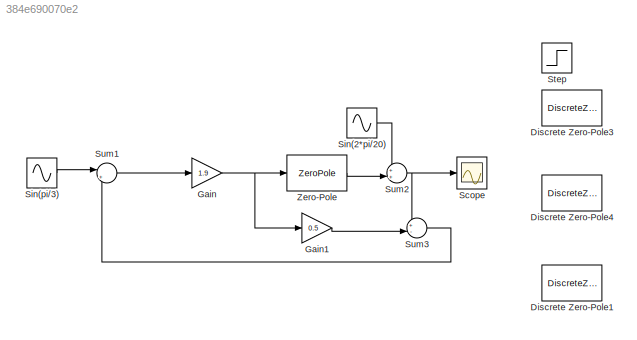
MODEL slx_384e690070e2
KIND model
CONFIG AbsTol = auto
CONFIG FixedStep = auto
CONFIG MaxStep = auto
CONFIG MinStep = auto
CONFIG RelTol = 1e-3
CONFIG SampleTimeConstraint = Unconstrained
CONFIG Solver = VariableStepAuto
CONFIG SolverMode = Auto
CONFIG SolverName = VariableStepAuto
CONFIG StartTime = 0.0
CONFIG StopTime = 20
BLOCK [DiscreteZeroPole] Discrete Zero-Pole1
  Gain = 1
  Poles = [1.4 0.9]
  Zeros = [-0.5]
BLOCK [DiscreteZeroPole] Discrete Zero-Pole3
  Gain = 0.9
  Poles = [1.4 0.9]
  Zeros = [0 -0.5]
BLOCK [DiscreteZeroPole] Discrete Zero-Pole4
  Gain = 1
  Poles = [0 -0.5]
  Zeros = [1.4 0.9]
BLOCK [Gain] Gain
  Gain = 1.9
  OutDataTypeStr = Inherit: Inherit via internal rule
  ParamDataTypeStr = Inherit: Inherit via internal rule
  SaturateOnIntegerOverflow = off
BLOCK [Gain] Gain1
  Gain = 0.5
  OutDataTypeStr = Inherit: Inherit via internal rule
  ParamDataTypeStr = Inherit: Inherit via internal rule
  SaturateOnIntegerOverflow = off
BLOCK [Scope] Scope
  Ports = [1]
  ScopeSpecificationString = Simulink.scopes.TimeScopeBlockCfg('CurrentConfiguration', extmgr.ConfigurationSet(extmgr.Configuration('Core','General UI',true,'FigureColor',[1 1 1]),extmgr.Configuration('Core','Source UI',true),extmgr.Configuration('Sources','WiredSimulink',true,'DataLoggingVariableName','ScopeData1'),extmgr.Configuration('Visuals','Time Domain',true,'SerializedDisplays',{struct('MinYLimReal','-1.798','MaxYLimR...<+1673ch>
BLOCK [Sin] Sin(2*pi//20)
  Amplitude = 0.2
  Frequency = 2*pi/20
  Ports = [0, 1]
  SampleTime = 0
BLOCK [Sin] Sin(pi//3)
  Frequency = pi/3
  Ports = [0, 1]
  SampleTime = 0
BLOCK [Step] Step
  SampleTime = 0
  Time = 0
BLOCK [Sum] Sum1
  IconShape = round
  InputSameDT = off
  Inputs = |+-
  OutDataTypeStr = Inherit: Inherit via internal rule
  Ports = [2, 1]
  SaturateOnIntegerOverflow = off
BLOCK [Sum] Sum2
  IconShape = round
  InputSameDT = off
  Inputs = ++|
  OutDataTypeStr = Inherit: Inherit via internal rule
  Ports = [2, 1]
  SaturateOnIntegerOverflow = off
BLOCK [Sum] Sum3
  IconShape = round
  InputSameDT = off
  Inputs = +-|
  OutDataTypeStr = Inherit: Inherit via internal rule
  Ports = [2, 1]
  SaturateOnIntegerOverflow = off
BLOCK [ZeroPole] Zero-Pole
  Poles = [1.4 0.9]
  Zeros = [-0.5]
LINE Gain1:1 -> Sum3:2
NET Gain:1 -> Gain1:1, Zero-Pole:1
LINE Sin(2*pi//20):1 -> Sum2:1
LINE Sin(pi//3):1 -> Sum1:1
LINE Sum1:1 -> Gain:1
NET Sum2:1 -> Scope:1, Sum3:1
LINE Sum3:1 -> Sum1:2
LINE Zero-Pole:1 -> Sum2:2
note: NET lines group one-source signal fan-out (src -> all destinations, sorted); 1:1 wires keep LINE
